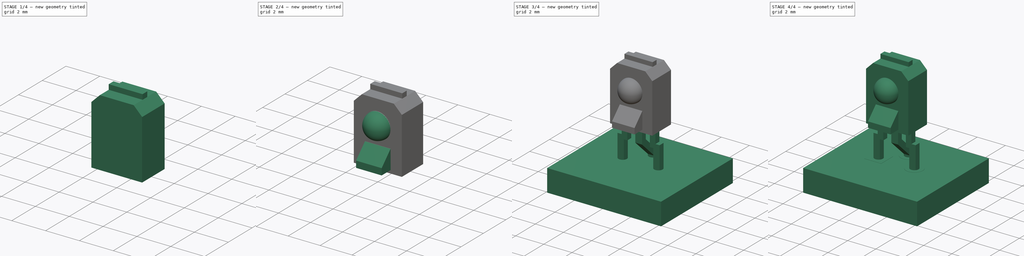
[diagram: build sequence overview — one tinted view per stage of 4, left to right]
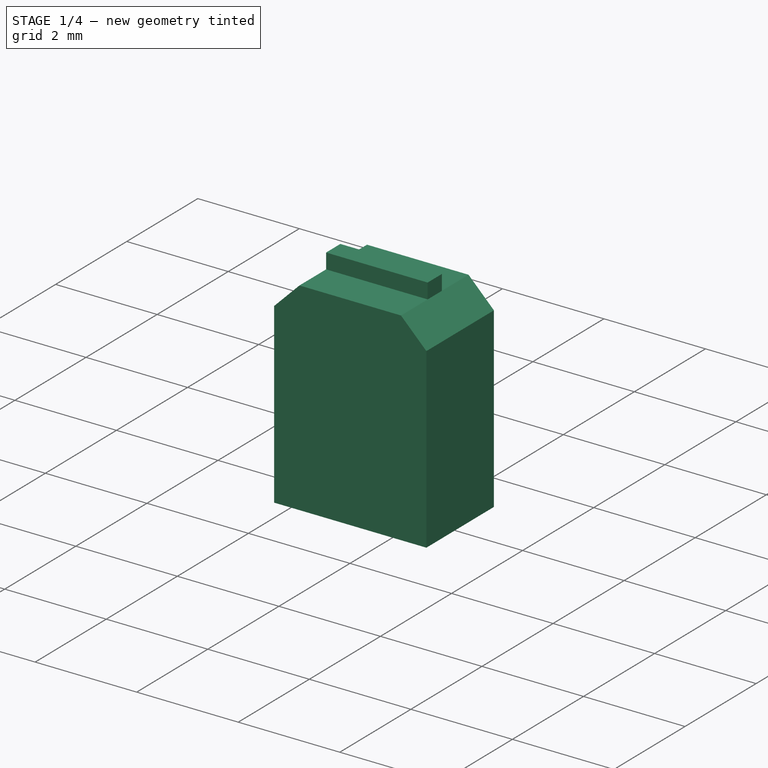
[diagram: stage 1 of 4 — iso view after this stage's code; geometry added in this stage tinted green]
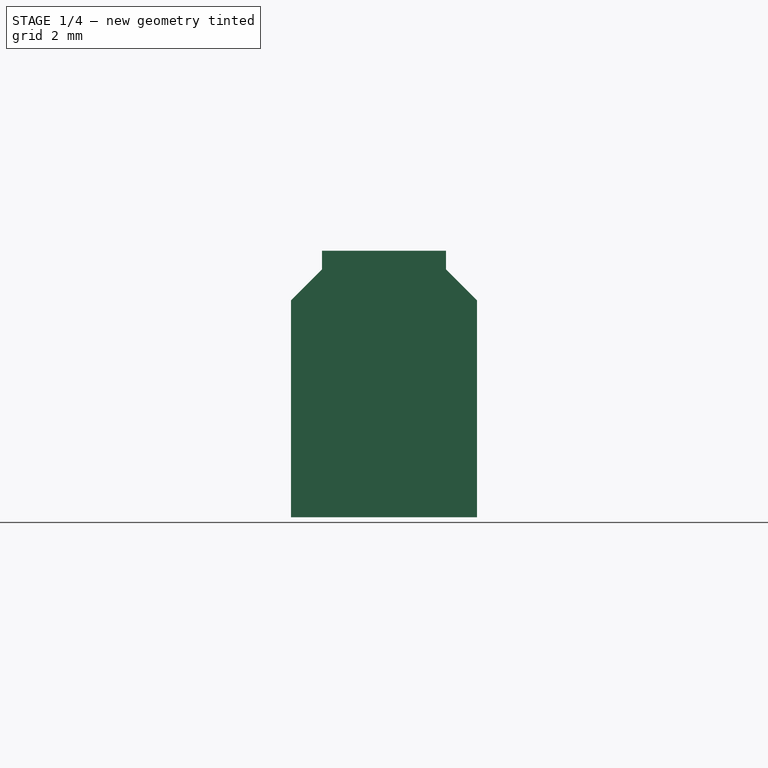
[diagram: stage 1 of 4 — front view after this stage's code; geometry added in this stage tinted green]
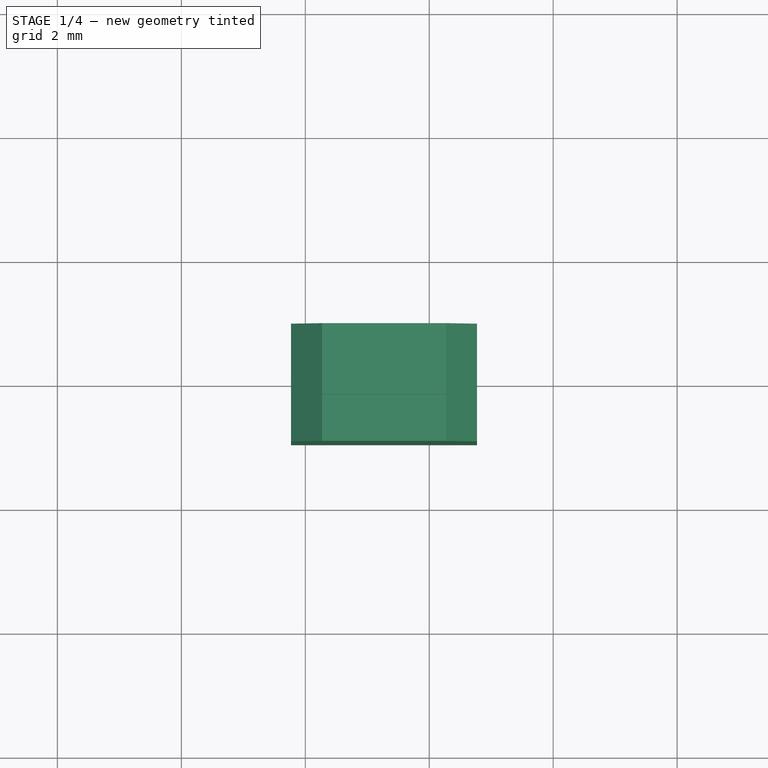
[diagram: stage 1 of 4 — top view after this stage's code; geometry added in this stage tinted green]
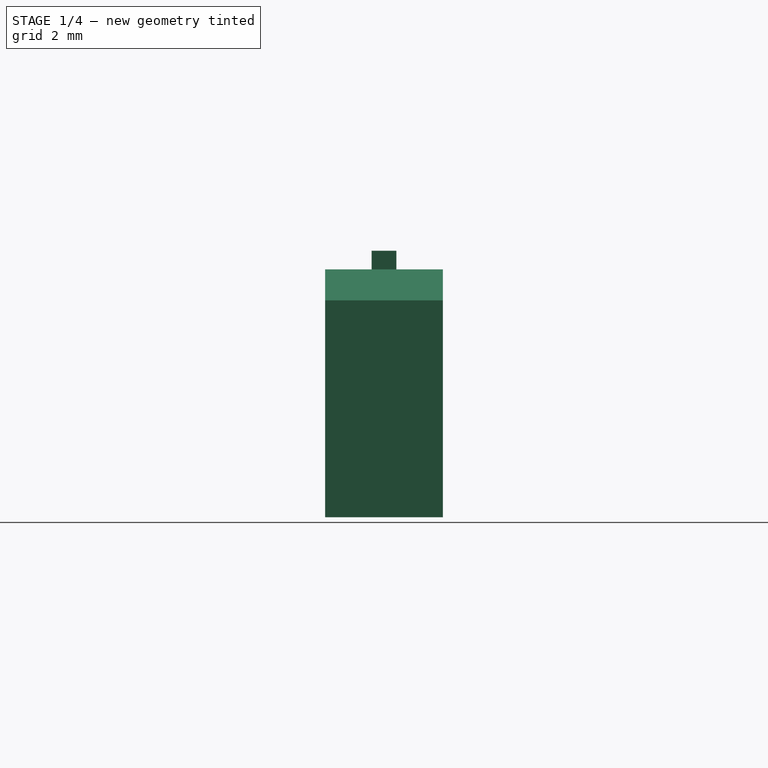
[diagram: stage 1 of 4 — right view after this stage's code; geometry added in this stage tinted green]
FCSTD DOCUMENT  (FreeCAD 0.16R6712 (Git))
Label: Sharp_IS485
License: All rights reserved
LicenseURL: http://en.wikipedia.org/wiki/All_rights_reserved
objects: Part::FeaturePython×7, Sketcher::SketchObject×6, PartDesign::Pad×5, PartDesign::Chamfer×2, App::DocumentObjectGroup×1, PartDesign::Revolution×1, Part::MultiFuse×1
note: 28 computed .brp shape members not serialized (recipe doc carries the construction recipe); baked Part::Feature solids carry a one-line shape summary decoded from their .brp

FEATURE [PartDesign::Pad] Pad003
  Length = 4
  Length2 = 100
  Placement = pos=(0,0,2.5) rot=(0,0,1;0rad)
  Sketch = -> Sketch
  Type = 0
FEATURE [PartDesign::Chamfer] Chamfer
  Base = -> Pad003 [Edge7,Edge12]
  Placement = pos=(0,0,2.5) rot=(0,0,1;0rad)
  Size = 0.5
FEATURE [Sketcher::SketchObject] Sketch004
  ExternalGeometry = -> [Chamfer]
  Placement = pos=(0,0,6.5) rot=(0,0,1;0rad)
  Support = -> Chamfer [Face5]
  sketch-geometry (4):
    g0: LineSegment StartX=0.27 StartY=0.2 StartZ=0 EndX=2.27 EndY=0.2 EndZ=0
    g1: LineSegment StartX=2.27 StartY=0.2 StartZ=0 EndX=2.27 EndY=-0.2 EndZ=0
    g2: LineSegment StartX=2.27 StartY=-0.2 StartZ=0 EndX=0.27 EndY=-0.2 EndZ=0
    g3: LineSegment StartX=0.27 StartY=-0.2 StartZ=0 EndX=0.27 EndY=0.2 EndZ=0
  constraints (12):
    c: Coincident(g0,g1)
    c: Coincident(g1,g2)
    c: Coincident(g2,g3)
    c: Coincident(g3,g0)
    c: Horizontal(g0)
    c: Horizontal(g2)
    c: Vertical(g1)
    c: Vertical(g3)
    c: PointOnObject(g0,g-4)
    c: PointOnObject(g1,g-3)
    c: DistanceY(g-3,g1) = 0.75
    c: DistanceY(g0,g-3) = 0.75
FEATURE [PartDesign::Pad] Pad004
  Length = 0.3
  Length2 = 100
  Placement = pos=(0,0,2.5) rot=(0,0,1;0rad)
  Sketch = -> Sketch004
  Type = 0
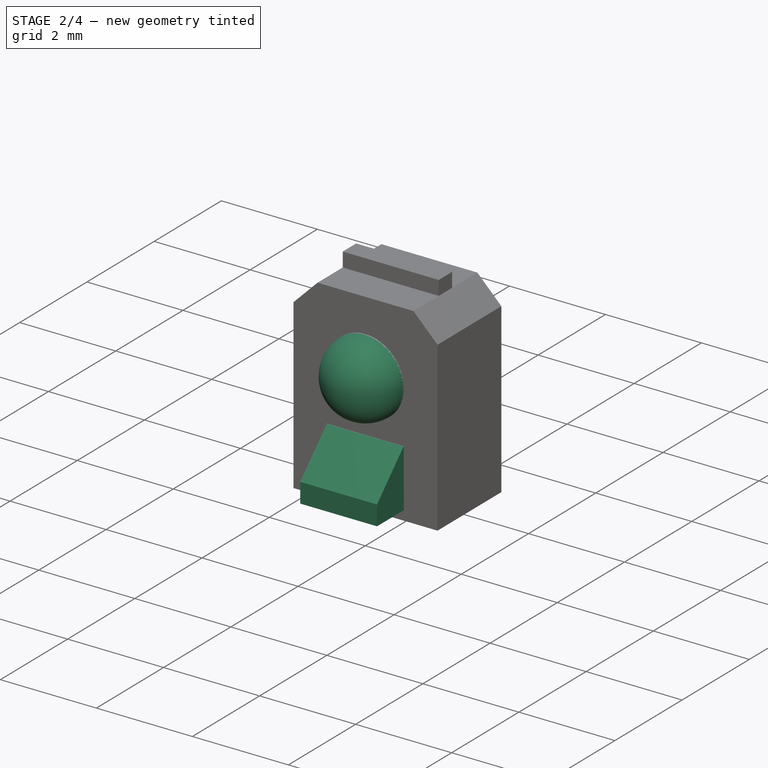
[diagram: stage 2 of 4 — iso view after this stage's code; geometry added in this stage tinted green]
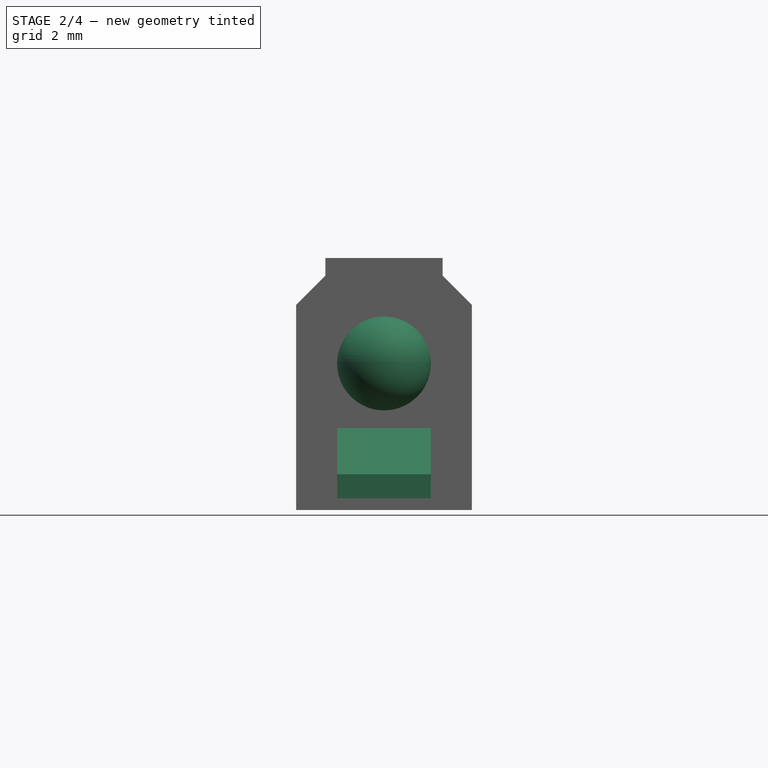
[diagram: stage 2 of 4 — front view after this stage's code; geometry added in this stage tinted green]
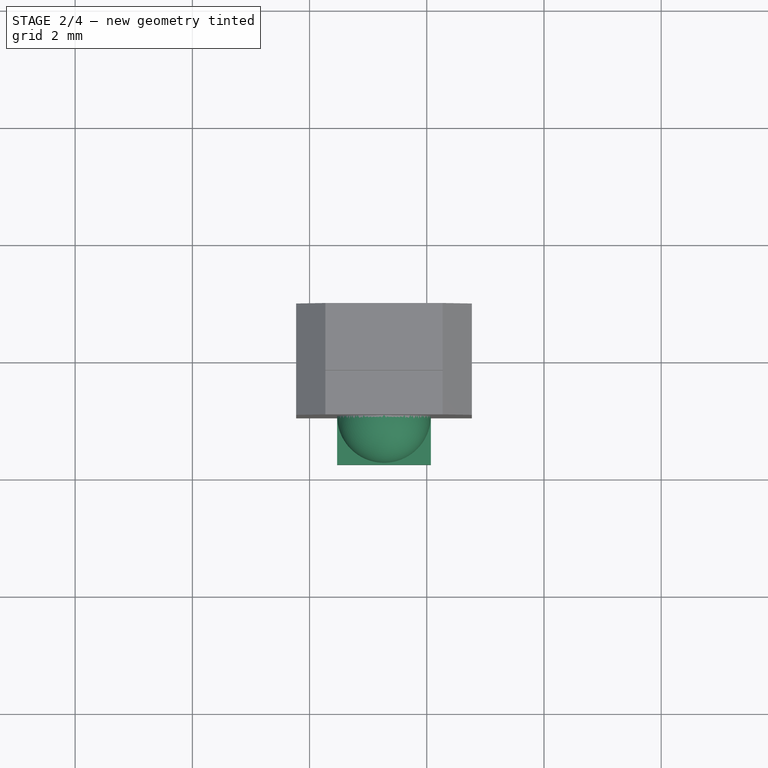
[diagram: stage 2 of 4 — top view after this stage's code; geometry added in this stage tinted green]
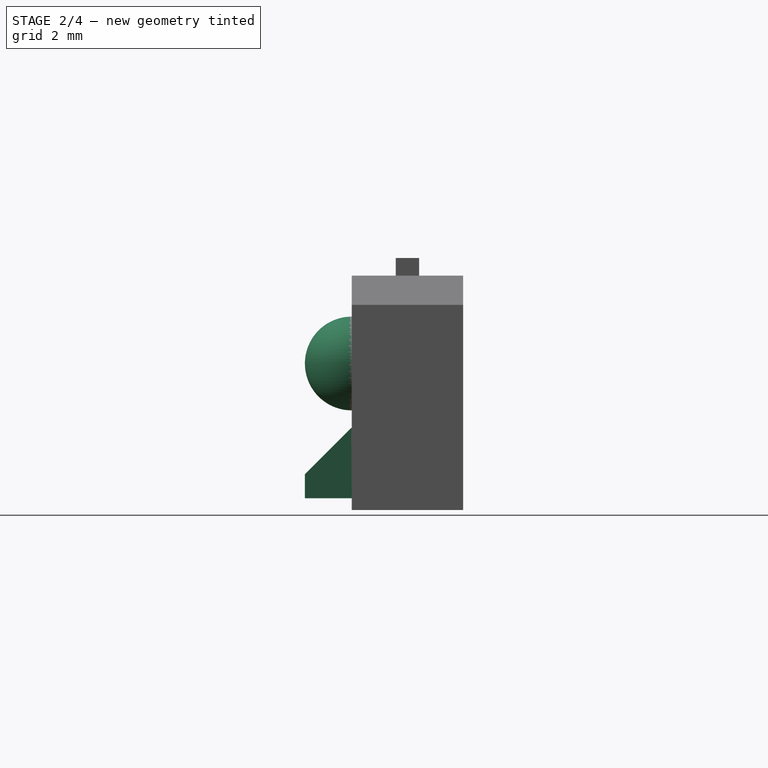
[diagram: stage 2 of 4 — right view after this stage's code; geometry added in this stage tinted green]
FEATURE [Sketcher::SketchObject] Sketch005
  ExternalGeometry = -> [Pad004]
  Placement = pos=(0,-0.95,2.5) rot=(1,0,0;1.5708rad)
  Support = -> Pad004 [Face12]
  sketch-geometry (3):
    g0: ArcOfCircle CenterX=1.27 CenterY=2.5 CenterZ=0 NormalX=0 NormalY=0 NormalZ=1 Radius=0.8 StartAngle=4.71239 EndAngle=7.85398
    g1: LineSegment StartX=1.27 StartY=3.3 StartZ=0 EndX=1.27 EndY=1.7 EndZ=0
    g2: LineSegment [constr] StartX=1.27 StartY=3.3 StartZ=0 EndX=1.27 EndY=4 EndZ=0
  constraints (10):
    c: Coincident(g1,g0)
    c: Coincident(g1,g0)
    c: Vertical(g1)
    c: PointOnObject(g0,g1)
    c: Radius(g0) = 0.8
    c: DistanceY(g0,g-3) = 1.5
    c: PointOnObject(g2,g-3)
    c: Vertical(g2)
    c: Coincident(g0,g2)
    c: Symmetric(g-3,g-3,g2)
FEATURE [PartDesign::Revolution] Revolution
  Angle = 360
  Axis = (0,0,0.7)
  Base = (1.27,-0.95,5.8)
  Placement = pos=(0,0,2.5) rot=(0,0,1;0rad)
  ReferenceAxis = -> Sketch005 [Axis0]
  Reversed = true
  Sketch = -> Sketch005
FEATURE [Sketcher::SketchObject] Sketch006
  ExternalGeometry = -> [Revolution]
  Placement = pos=(0,-0.95,2.5) rot=(1,0,0;1.5708rad)
  Support = -> Revolution [Face12]
  sketch-geometry (5):
    g0: LineSegment StartX=0.47 StartY=1.4 StartZ=0 EndX=2.07 EndY=1.4 EndZ=0
    g1: LineSegment StartX=2.07 StartY=1.4 StartZ=0 EndX=2.07 EndY=0.2 EndZ=0
    g2: LineSegment StartX=2.07 StartY=0.2 StartZ=0 EndX=0.47 EndY=0.2 EndZ=0
    g3: LineSegment StartX=0.47 StartY=0.2 StartZ=0 EndX=0.47 EndY=1.4 EndZ=0
    g4: LineSegment [constr] StartX=1.27 StartY=0.2 StartZ=0 EndX=1.27 EndY=0 EndZ=0
  constraints (16):
    c: Coincident(g0,g1)
    c: Coincident(g1,g2)
    c: Coincident(g2,g3)
    c: Coincident(g3,g0)
    c: Horizontal(g0)
    c: Horizontal(g2)
    c: Vertical(g1)
    c: Vertical(g3)
    c: PointOnObject(g4,g2)
    c: PointOnObject(g4,g-1)
    c: Vertical(g4)
    c: Symmetric(g-4,g-4,g4)
    c: Symmetric(g2,g2,g4)
    c: DistanceX(g2,g2) = 1.6
    c: DistanceY(g1,g1) = 1.2
    c: DistanceY(g4,g4) = 0.2
FEATURE [PartDesign::Pad] Pad005
  Length = 0.8
  Length2 = 100
  Placement = pos=(0,0,2.5) rot=(0,0,1;0rad)
  Sketch = -> Sketch006
  Type = 0
FEATURE [PartDesign::Chamfer] Chamfer001
  Base = -> Pad005 [Edge1]
  Placement = pos=(0,0,2.5) rot=(0,0,1;0rad)
  Size = 0.79
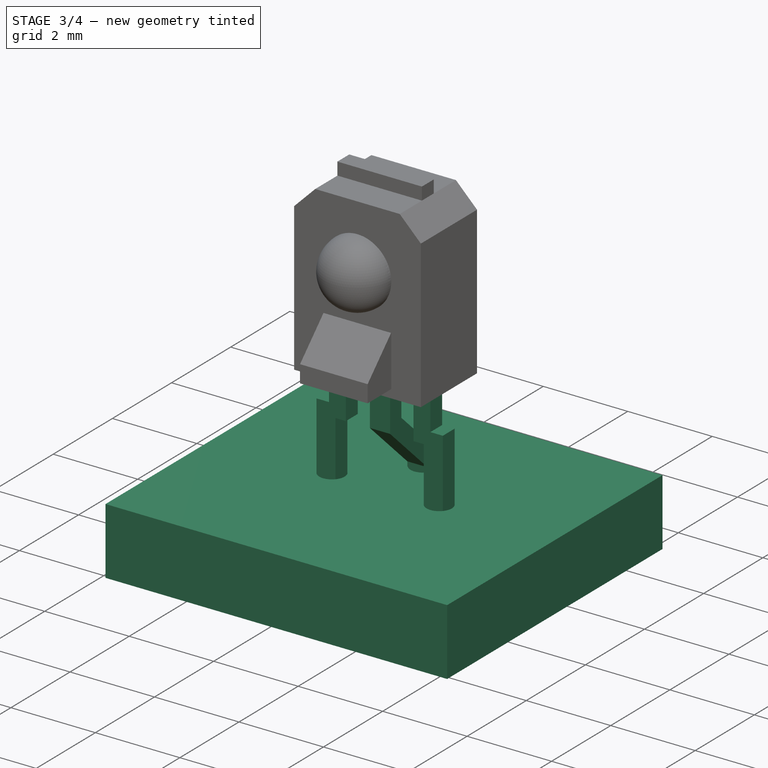
[diagram: stage 3 of 4 — iso view after this stage's code; geometry added in this stage tinted green]
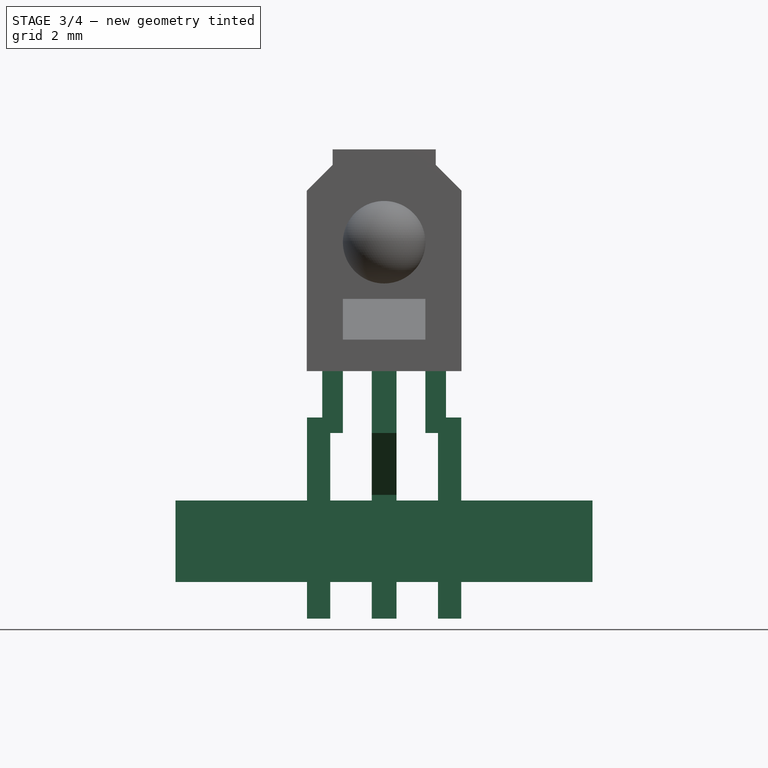
[diagram: stage 3 of 4 — front view after this stage's code; geometry added in this stage tinted green]
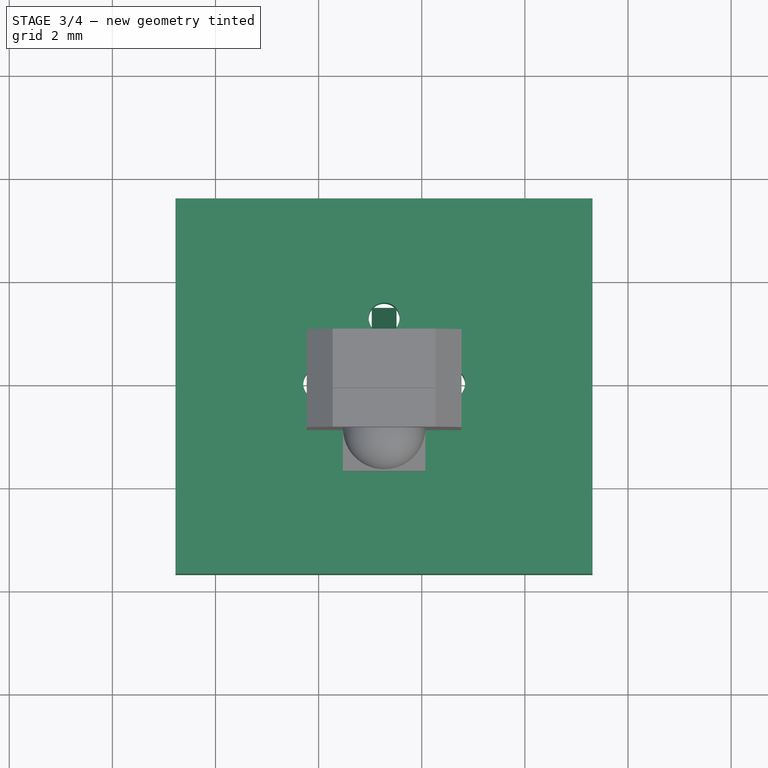
[diagram: stage 3 of 4 — top view after this stage's code; geometry added in this stage tinted green]
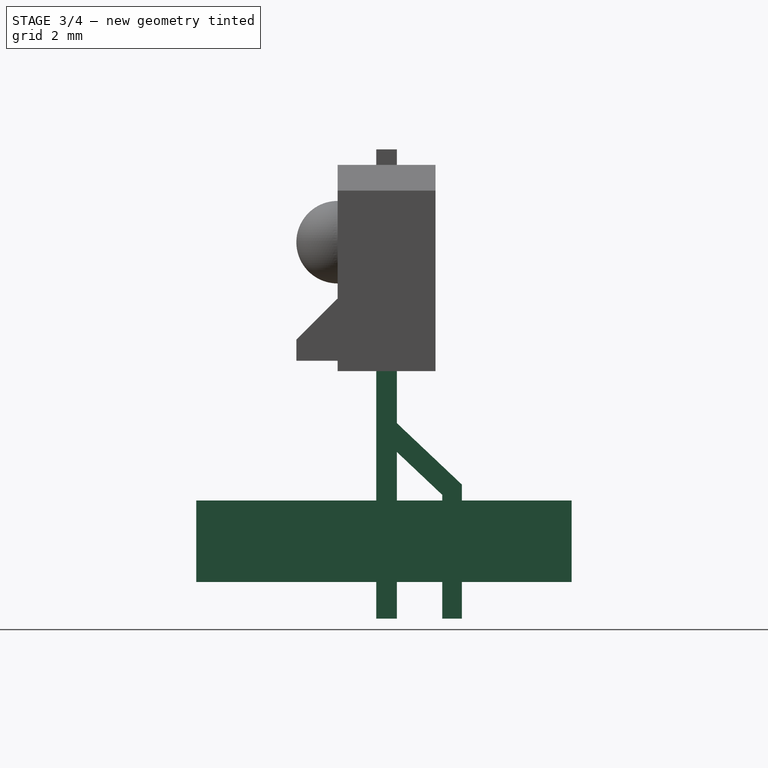
[diagram: stage 3 of 4 — right view after this stage's code; geometry added in this stage tinted green]
FEATURE [Sketcher::SketchObject] Sketch002
  Placement = pos=(1.27,0,0) rot=(0.57735,0.57735,0.57735;2.0944rad)
  sketch-geometry (9):
    g0: LineSegment StartX=-0.19 StartY=2.7 StartZ=0 EndX=0.19 EndY=2.7 EndZ=0
    g1: LineSegment StartX=0.19 StartY=2.7 StartZ=0 EndX=0.19 EndY=1.5 EndZ=0
    g2: LineSegment StartX=-0.19 StartY=1.3 StartZ=0 EndX=-0.19 EndY=2.7 EndZ=0
    g3: LineSegment StartX=1.46 StartY=0.3 StartZ=0 EndX=1.46 EndY=-2.3 EndZ=0
    g4: LineSegment StartX=1.46 StartY=-2.3 StartZ=0 EndX=1.08 EndY=-2.3 EndZ=0
    g5: LineSegment StartX=1.08 StartY=-2.3 StartZ=0 EndX=1.08 EndY=0.1 EndZ=0
    g6: GeomPoint [constr] X=0 Y=2.7 Z=0
    g7: LineSegment StartX=-0.19 StartY=1.3 StartZ=0 EndX=1.08 EndY=0.1 EndZ=0
    g8: LineSegment StartX=0.19 StartY=1.5 StartZ=0 EndX=1.46 EndY=0.3 EndZ=0
  constraints (26):
    c: Coincident(g0,g1)
    c: Coincident(g2,g0)
    c: Horizontal(g0)
    c: Vertical(g1)
    c: Vertical(g2)
    c: Coincident(g3,g4)
    c: Coincident(g4,g5)
    c: Horizontal(g4)
    c: Vertical(g3)
    c: Vertical(g5)
    c: PointOnObject(g6,g0)
    c: Symmetric(g0,g0,g6)
    c: PointOnObject(g6,g-2)
    c: Equal(g0,g4)
    c: DistanceY(g3,g0) = 5
    c: DistanceY(g4,g5) = 2.4
    c: DistanceY(g2,g0) = 1.4
    c: Coincident(g7,g2)
    c: Coincident(g7,g5)
    c: Coincident(g8,g1)
    c: Coincident(g8,g3)
    c: DistanceY(g1,g0) = 1.2
    c: DistanceX(g2,g4) = 1.27
    c: DistanceX(g0,g0) = 0.38
    c: Parallel(g8,g7)
    c: DistanceY(g-1,g0) = 2.7
FEATURE [PartDesign::Pad] Pad002
  Length = 0.48
  Length2 = 100
  Midplane = true
  Placement = pos=(1.27,0,0) rot=(0.57735,0.57735,0.57735;2.0944rad)
  Sketch = -> Sketch002
  Type = 0
FEATURE [Part::FeaturePython] newPCB  label="Pcb"  # a2plus imported part (geometry in sourceFile) (typed FeaturePython)
  fixedPosition = true
FEATURE [App::DocumentObjectGroup] Sharp_IS485_fp
  Group = -> [FCrtYd_lines,FFab_lines,Filk_lines,TopPads,BotPads,THPs,newPCB]
FEATURE [Sketcher::SketchObject] Sketch
  Placement = pos=(0,0,2.5) rot=(0,0,1;0rad)
  expr: Constraints[12] = (3 - 2.54) / 2
  sketch-geometry (5):
    g0: LineSegment StartX=-0.23 StartY=0.95 StartZ=0 EndX=2.77 EndY=0.95 EndZ=0
    g1: LineSegment StartX=2.77 StartY=0.95 StartZ=0 EndX=2.77 EndY=-0.95 EndZ=0
    g2: LineSegment StartX=2.77 StartY=-0.95 StartZ=0 EndX=-0.23 EndY=-0.95 EndZ=0
    g3: LineSegment StartX=-0.23 StartY=-0.95 StartZ=0 EndX=-0.23 EndY=0.95 EndZ=0
    g4: GeomPoint [constr] X=-0.23 Y=0 Z=0
  constraints (13):
    c: Coincident(g0,g1)
    c: Coincident(g1,g2)
    c: Coincident(g2,g3)
    c: Coincident(g3,g0)
    c: Horizontal(g0)
    c: Horizontal(g2)
    c: Vertical(g1)
    c: Vertical(g3)
    c: DistanceX(g0,g0) = 3
    c: DistanceY(g3,g3) = 1.9
    c: PointOnObject(g4,g-1)
    c: Symmetric(g3,g3,g4)
    c: DistanceX(g4,g-1) = 0.23
FEATURE [Sketcher::SketchObject] Sketch003
  Placement = pos=(0,0,0) rot=(-1,0,0;4.71239rad)
  sketch-geometry (20):
    g0: LineSegment StartX=-0.225 StartY=-2.3 StartZ=0 EndX=0.225 EndY=-2.3 EndZ=0
    g1: LineSegment StartX=0.225 StartY=-2.3 StartZ=0 EndX=0.225 EndY=1.3 EndZ=0
    g2: LineSegment StartX=-0.225 StartY=1.6 StartZ=0 EndX=-0.225 EndY=-2.3 EndZ=0
    g3: LineSegment StartX=2.315 StartY=-2.3 StartZ=0 EndX=2.765 EndY=-2.3 EndZ=0
    g4: LineSegment StartX=2.765 StartY=-2.3 StartZ=0 EndX=2.765 EndY=1.6 EndZ=0
    g5: LineSegment StartX=2.315 StartY=1.3 StartZ=0 EndX=2.315 EndY=-2.3 EndZ=0
    g6: GeomPoint [constr] X=0 Y=-2.3 Z=0
    g7: LineSegment StartX=0.07 StartY=2.7 StartZ=0 EndX=0.47 EndY=2.7 EndZ=0
    g8: LineSegment StartX=0.47 StartY=2.7 StartZ=0 EndX=0.47 EndY=1.3 EndZ=0
    g9: LineSegment StartX=0.07 StartY=1.6 StartZ=0 EndX=0.07 EndY=2.7 EndZ=0
    g10: LineSegment StartX=2.07 StartY=2.7 StartZ=0 EndX=2.47 EndY=2.7 EndZ=0
    g11: LineSegment StartX=2.47 StartY=2.7 StartZ=0 EndX=2.47 EndY=1.6 EndZ=0
    g12: LineSegment StartX=2.07 StartY=1.3 StartZ=0 EndX=2.07 EndY=2.7 EndZ=0
    g13: LineSegment [constr] StartX=0.07 StartY=2.7 StartZ=0 EndX=2.47 EndY=2.7 EndZ=0
    g14: LineSegment [constr] StartX=-0.225 StartY=-2.3 StartZ=0 EndX=2.765 EndY=-2.3 EndZ=0
    g15: LineSegment [constr] StartX=1.27 StartY=-2.3 StartZ=0 EndX=1.27 EndY=2.7 EndZ=0
    g16: LineSegment StartX=2.47 StartY=1.6 StartZ=0 EndX=2.765 EndY=1.6 EndZ=0
    g17: LineSegment StartX=2.315 StartY=1.3 StartZ=0 EndX=2.07 EndY=1.3 EndZ=0
    g18: LineSegment StartX=0.47 StartY=1.3 StartZ=0 EndX=0.225 EndY=1.3 EndZ=0
    g19: LineSegment StartX=-0.225 StartY=1.6 StartZ=0 EndX=0.07 EndY=1.6 EndZ=0
  constraints (58):
    c: Coincident(g0,g1)
    c: Coincident(g2,g0)
    c: Horizontal(g0)
    c: Vertical(g1)
    c: Vertical(g2)
    c: Coincident(g3,g4)
    c: Coincident(g5,g3)
    c: Horizontal(g3)
    c: Vertical(g4)
    c: Vertical(g5)
    c: PointOnObject(g6,g-2)
    c: PointOnObject(g6,g0)
    c: Symmetric(g0,g0,g6)
    c: DistanceX(g0,g3) = 2.54
    c: Equal(g3,g0)
    c: DistanceX(g3,g3) = 0.45
    c: DistanceY(g6,g-1) = 2.3
    c: Equal(g5,g1)
    c: Coincident(g7,g8)
    c: Coincident(g9,g7)
    c: Horizontal(g7)
    c: Vertical(g8)
    c: Vertical(g9)
    c: Coincident(g10,g11)
    c: Coincident(g12,g10)
    c: Horizontal(g10)
    c: Vertical(g11)
    c: Vertical(g12)
    c: Equal(g10,g7)
    c: DistanceX(g10,g10) = 0.4
    c: DistanceX(g7,g10) = 2
    c: Coincident(g13,g7)
    c: Coincident(g13,g10)
    c: Horizontal(g13)
    c: Coincident(g14,g0)
    c: Coincident(g14,g3)
    c: Horizontal(g14)
    c: PointOnObject(g15,g14)
    c: PointOnObject(g15,g13)
    c: Vertical(g15)
    c: Symmetric(g13,g13,g15)
    c: Symmetric(g14,g14,g15)
    c: Coincident(g16,g11)
    c: Coincident(g16,g4)
    c: Coincident(g17,g12)
    c: Coincident(g5,g17)
    c: Coincident(g18,g8)
    c: Coincident(g18,g1)
    c: Coincident(g19,g2)
    c: Coincident(g9,g19)
    c: DistanceY(g-1,g10) = 2.7
    c: DistanceY(g11,g11) = 1.1
    c: Equal(g11,g9)
    c: Equal(g8,g12)
    c: DistanceY(g12,g12) = 1.4
    c: Horizontal(g17)
    c: Horizontal(g19)
    c: Horizontal(g16)
FEATURE [PartDesign::Pad] Pad
  Length = 0.4
  Length2 = 100
  Midplane = true
  Placement = pos=(0,0,0) rot=(-1,0,0;4.71239rad)
  Sketch = -> Sketch003
  Type = 0
FEATURE [Part::MultiFuse] Chamfer001_mp_cp  label="Sharp_IS485"
  Shapes = -> [Chamfer001,Pad,Pad002]
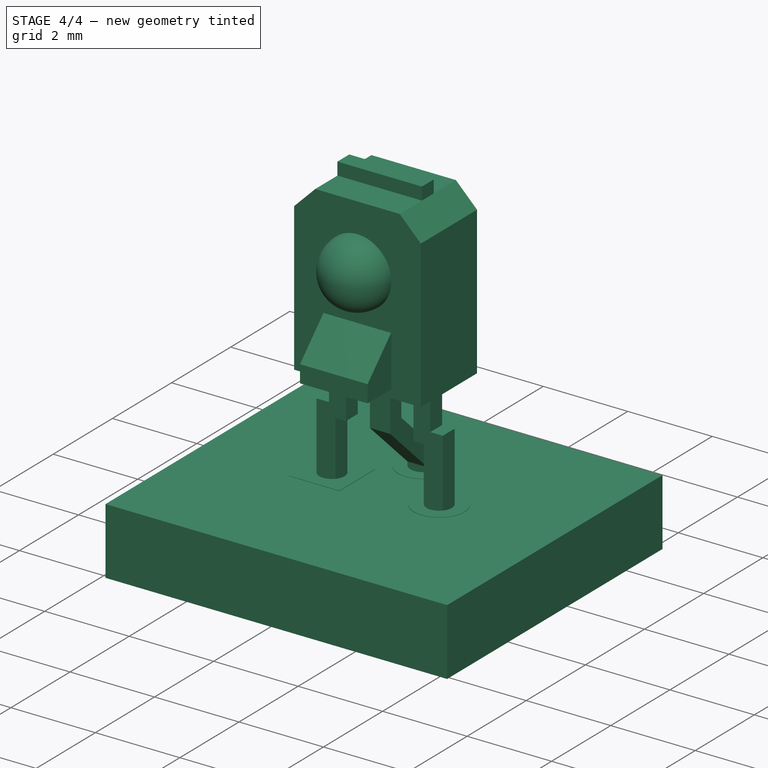
[diagram: stage 4 of 4 — iso view after this stage's code; geometry added in this stage tinted green]
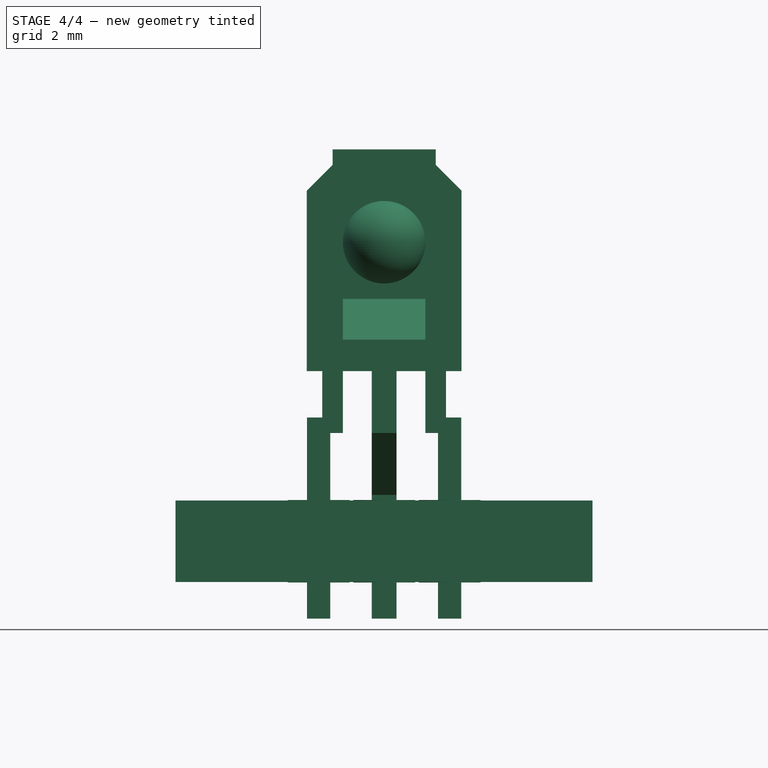
[diagram: stage 4 of 4 — front view after this stage's code; geometry added in this stage tinted green]
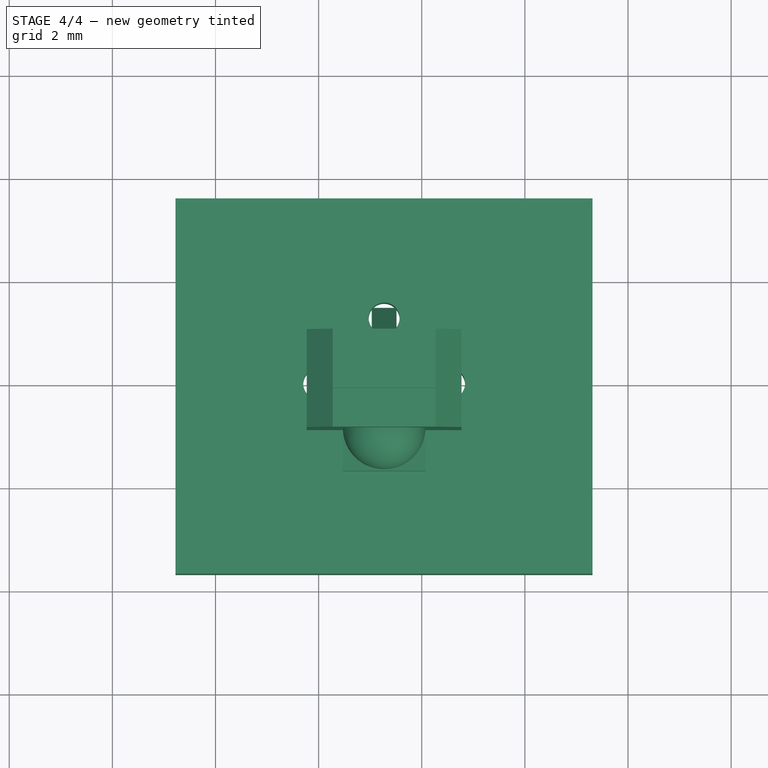
[diagram: stage 4 of 4 — top view after this stage's code; geometry added in this stage tinted green]
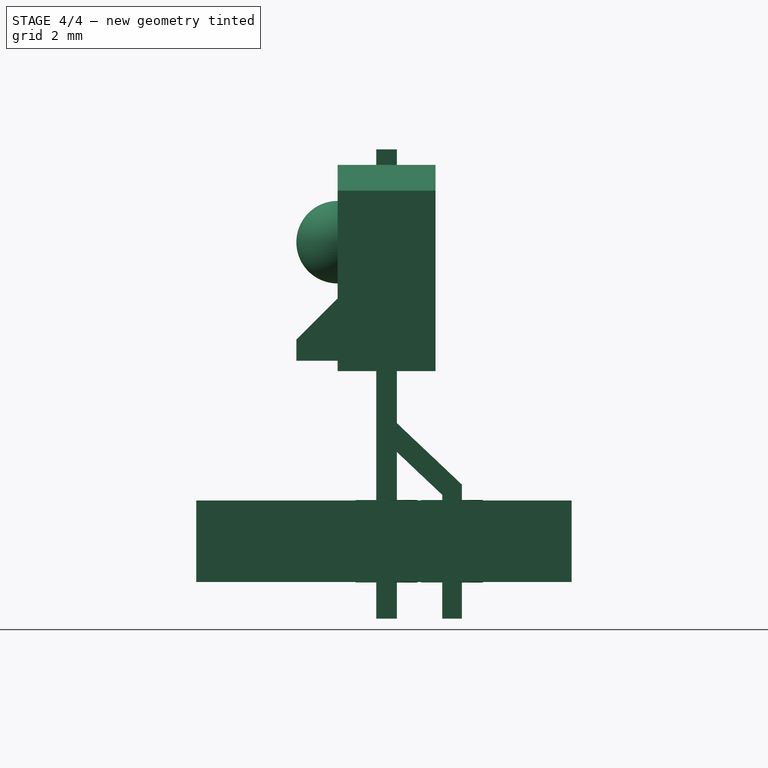
[diagram: stage 4 of 4 — right view after this stage's code; geometry added in this stage tinted green]
FEATURE [Part::FeaturePython] FCrtYd_lines  label="FCrtYd"  # a2plus imported part (geometry in sourceFile) (typed FeaturePython)
  fixedPosition = true
FEATURE [Part::FeaturePython] FFab_lines  label="FFab"  # a2plus imported part (geometry in sourceFile) (typed FeaturePython)
  fixedPosition = true
FEATURE [Part::FeaturePython] Filk_lines  label="FrontSilk"  # a2plus imported part (geometry in sourceFile) (typed FeaturePython)
  fixedPosition = true
FEATURE [Part::FeaturePython] TopPads  # a2plus imported part (geometry in sourceFile) (typed FeaturePython)
  fixedPosition = true
FEATURE [Part::FeaturePython] BotPads  # a2plus imported part (geometry in sourceFile) (typed FeaturePython)
  fixedPosition = true
FEATURE [Part::FeaturePython] THPs  label="PTHs"  # a2plus imported part (geometry in sourceFile) (typed FeaturePython)
  fixedPosition = true
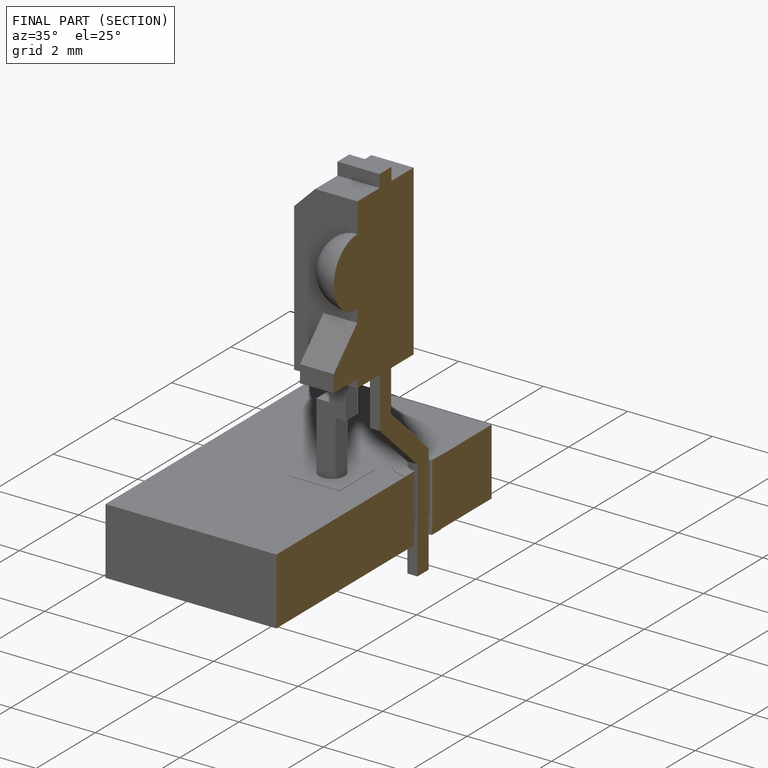
[diagram: finished part — half-section view (interior)]
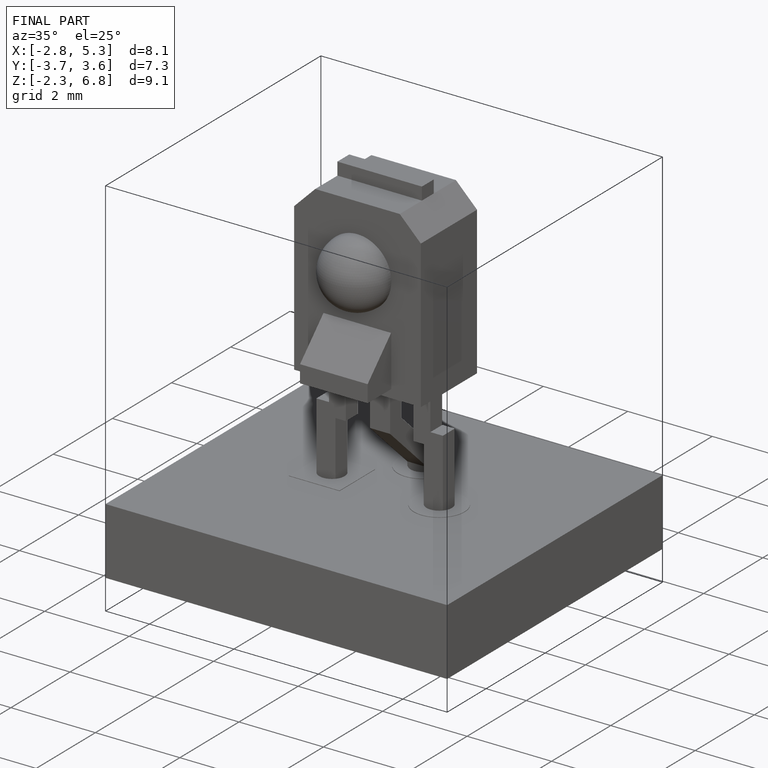
[diagram: finished part — iso view with bounding-box wireframe]
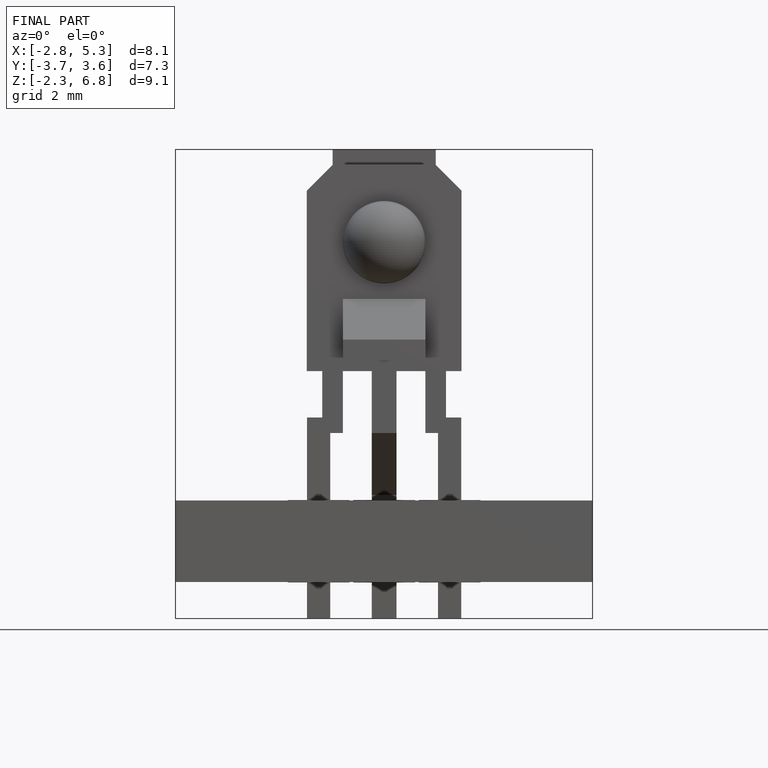
[diagram: finished part — front view with bounding-box wireframe]
